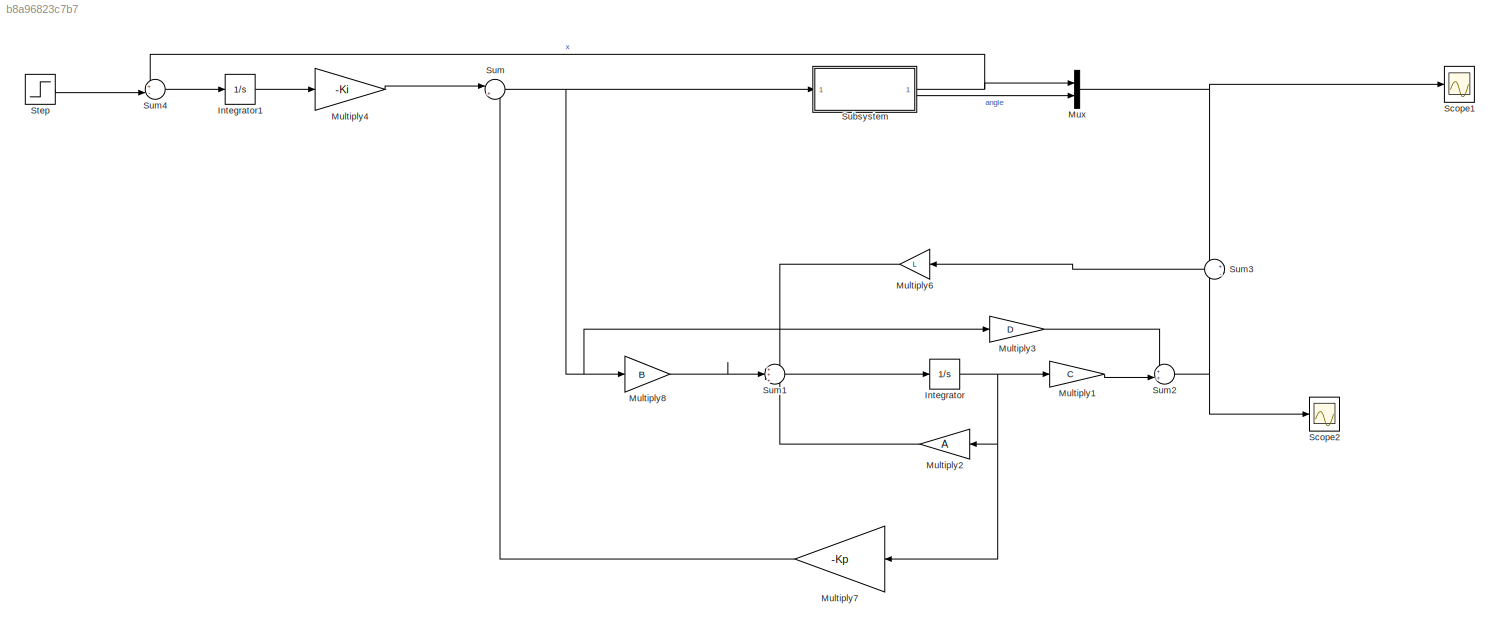
MODEL slx_b8a96823c7b7
KIND model
CONFIG AbsTol = auto
CONFIG EnableMultiTasking = off
CONFIG FixedStep = auto
CONFIG MaxStep = auto
CONFIG MinStep = auto
CONFIG RelTol = 1e-3
CONFIG SampleTimeConstraint = Unconstrained
CONFIG SolverName = VariableStepAuto
CONFIG StartTime = 0.0
CONFIG StopTime = 30
BLOCK [Integrator] Integrator
BLOCK [Integrator] Integrator1
BLOCK [Gain] Multiply1
  Gain = C
  Multiplication = Matrix(K*u)
BLOCK [Gain] Multiply2
  Gain = A
  Multiplication = Matrix(K*u)
  NameLocation = top
BLOCK [Gain] Multiply3
  Gain = D
  Multiplication = Matrix(K*u)
BLOCK [Gain] Multiply4
  Gain = -Ki
  Multiplication = Matrix(K*u)
BLOCK [Gain] Multiply6
  Gain = L
  Multiplication = Matrix(K*u)
  NameLocation = top
BLOCK [Gain] Multiply7
  Gain = -Kp
  Multiplication = Matrix(K*u)
  NameLocation = top
BLOCK [Gain] Multiply8
  Gain = B
  Multiplication = Matrix(K*u)
BLOCK [Mux] Mux
  DisplayOption = bar
  Inputs = 2
BLOCK [Scope] Scope1
  Floating = off
  NumInputPorts = 1
  ScopeSpecificationString = Simulink.scopes.TimeScopeBlockCfg('CurrentConfiguration', extmgr.ConfigurationSet(extmgr.Configuration('Core','General UI',true),extmgr.Configuration('Core','Source UI',true),extmgr.Configuration('Sources','WiredSimulink',true,'DataLoggingVariableName','ScopeData1'),extmgr.Configuration('Visuals','Time Domain',true,'SerializedDisplays',{struct('MinYLimReal','-0.98722','MaxYLimReal','1.54528','YLab...<+1439ch>
BLOCK [Scope] Scope2
  Floating = off
  NumInputPorts = 1
  ScopeSpecificationString = Simulink.scopes.TimeScopeBlockCfg('CurrentConfiguration', extmgr.ConfigurationSet(extmgr.Configuration('Core','General UI',true),extmgr.Configuration('Core','Source UI',true),extmgr.Configuration('Sources','WiredSimulink',true),extmgr.Configuration('Visuals','Time Domain',true,'SerializedDisplays',{struct('MinYLimReal','-1.8225','MaxYLimReal','0.8','YLabelReal','','MinYLimMag','0.00000','MaxYLimMa...<+1398ch>
BLOCK [Step] Step
  SampleTime = 0
  Time = 0
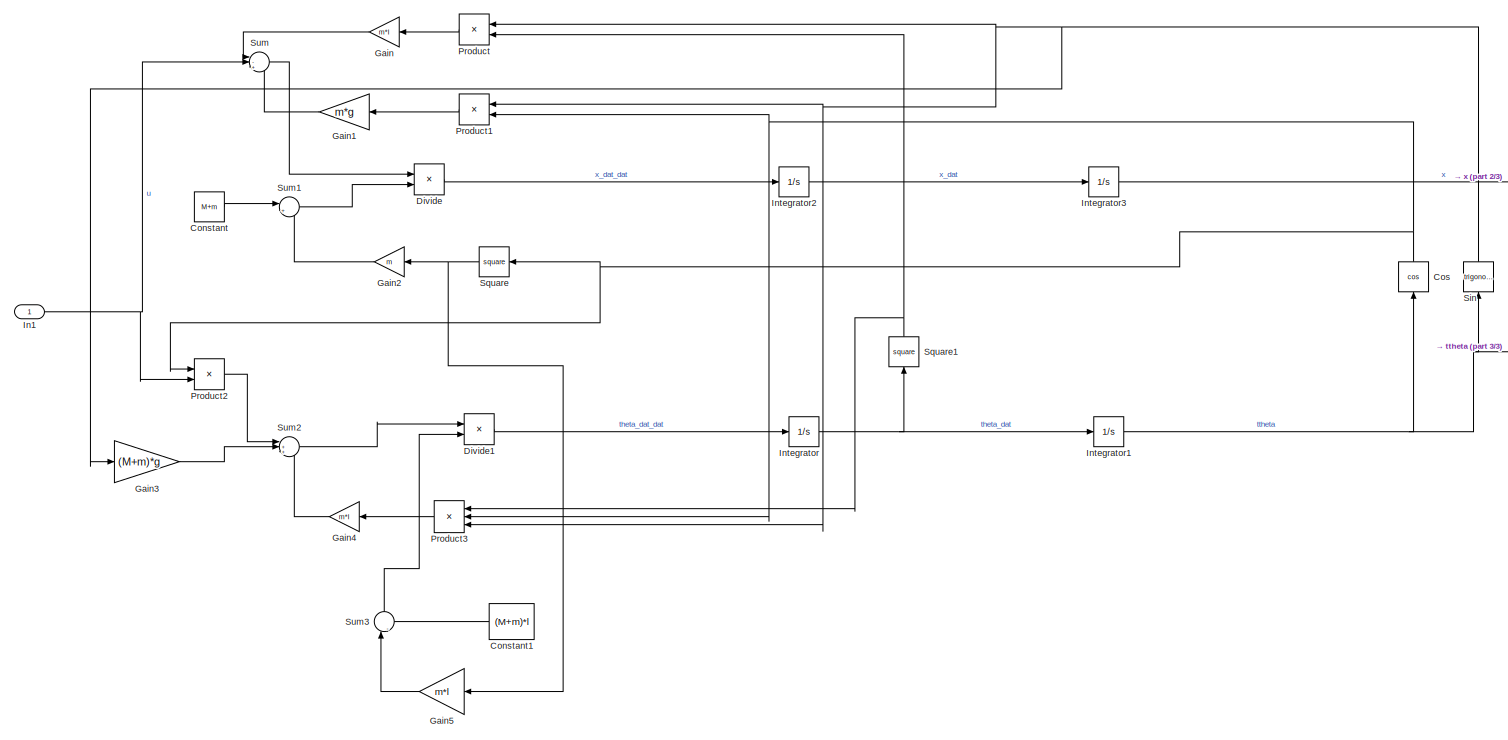
[diagram: Subsystem - part 1/3, most of the canvas]
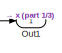
[diagram: Subsystem - part 2/3, top right region]
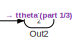
[diagram: Subsystem - part 3/3, middle right region]
BLOCK [SubSystem] Subsystem
BLOCK [Constant] Subsystem/Constant
  Value = M+m
BLOCK [Constant] Subsystem/Constant1
  NameLocation = top
  Value = (M+m)*l
BLOCK [Trigonometry] Subsystem/Cos
  NameLocation = right
  Operator = cos
BLOCK [Product] Subsystem/Divide
  Inputs = */
BLOCK [Product] Subsystem/Divide1
  Inputs = */
BLOCK [Gain] Subsystem/Gain
  Gain = m*l
  NameLocation = top
BLOCK [Gain] Subsystem/Gain1
  Gain = m*g
  NameLocation = top
BLOCK [Gain] Subsystem/Gain2
  Gain = m
  NameLocation = top
BLOCK [Gain] Subsystem/Gain3
  Gain = (M+m)*g
BLOCK [Gain] Subsystem/Gain4
  Gain = m*l
  NameLocation = top
BLOCK [Gain] Subsystem/Gain5
  Gain = m*l
  NameLocation = top
BLOCK [Inport] Subsystem/In1
BLOCK [Integrator] Subsystem/Integrator
BLOCK [Integrator] Subsystem/Integrator1
BLOCK [Integrator] Subsystem/Integrator2
BLOCK [Integrator] Subsystem/Integrator3
BLOCK [Outport] Subsystem/Out1
BLOCK [Outport] Subsystem/Out2
  Port = 2
BLOCK [Product] Subsystem/Product
  NameLocation = top
BLOCK [Product] Subsystem/Product1
  NameLocation = top
BLOCK [Product] Subsystem/Product2
BLOCK [Product] Subsystem/Product3
  Inputs = 3
  NameLocation = top
BLOCK [Trigonometry] Subsystem/Sin
  NameLocation = right
BLOCK [Math] Subsystem/Square
  NameLocation = top
  Operator = square
BLOCK [Math] Subsystem/Square1
  NameLocation = right
  Operator = square
BLOCK [Sum] Subsystem/Sum
  Inputs = |-++
BLOCK [Sum] Subsystem/Sum1
  Inputs = |++
BLOCK [Sum] Subsystem/Sum2
  Inputs = |++-
BLOCK [Sum] Subsystem/Sum3
  Inputs = |-+
  NameLocation = right
BLOCK [Sum] Sum
  Inputs = |++
BLOCK [Sum] Sum1
  Inputs = ++|+
BLOCK [Sum] Sum2
  Inputs = ++|
BLOCK [Sum] Sum3
  Inputs = +|-
  NameLocation = top
BLOCK [Sum] Sum4
  Inputs = +-|
LINE Integrator1:1 -> Multiply4:1
NET Integrator:1 -> Multiply1:1, Multiply2:1, Multiply7:1
LINE Multiply1:1 -> Sum2:2
LINE Multiply2:1 -> Sum1:3
LINE Multiply3:1 -> Sum2:1
LINE Multiply4:1 -> Sum:1
LINE Multiply6:1 -> Sum1:1
LINE Multiply7:1 -> Sum:2
LINE Multiply8:1 -> Sum1:2
NET Mux:1 -> Scope1:1, Sum3:1
LINE Step:1 -> Sum4:2
LINE Subsystem/Constant1:1 -> Subsystem/Sum3:2
LINE Subsystem/Constant:1 -> Subsystem/Sum1:1
NET Subsystem/Cos:1 -> Subsystem/Product1:2, Subsystem/Product2:1, Subsystem/Product3:2, Subsystem/Square:1
LINE Subsystem/Divide1:1 -> Subsystem/Integrator:1
LINE Subsystem/Divide:1 -> Subsystem/Integrator2:1
LINE Subsystem/Gain1:1 -> Subsystem/Sum:3
LINE Subsystem/Gain2:1 -> Subsystem/Sum1:2
LINE Subsystem/Gain3:1 -> Subsystem/Sum2:2
LINE Subsystem/Gain4:1 -> Subsystem/Sum2:3
LINE Subsystem/Gain5:1 -> Subsystem/Sum3:1
LINE Subsystem/Gain:1 -> Subsystem/Sum:1
NET Subsystem/In1:1 -> Subsystem/Product2:2, Subsystem/Sum:2
NET Subsystem/Integrator1:1 -> Subsystem/Cos:1, Subsystem/Out2:1, Subsystem/Sin:1
LINE Subsystem/Integrator2:1 -> Subsystem/Integrator3:1
LINE Subsystem/Integrator3:1 -> Subsystem/Out1:1
NET Subsystem/Integrator:1 -> Subsystem/Integrator1:1, Subsystem/Square1:1
LINE Subsystem/Product1:1 -> Subsystem/Gain1:1
LINE Subsystem/Product2:1 -> Subsystem/Sum2:1
LINE Subsystem/Product3:1 -> Subsystem/Gain4:1
LINE Subsystem/Product:1 -> Subsystem/Gain:1
NET Subsystem/Sin:1 -> Subsystem/Gain3:1, Subsystem/Product1:1, Subsystem/Product3:3, Subsystem/Product:1
NET Subsystem/Square1:1 -> Subsystem/Product3:1, Subsystem/Product:2
NET Subsystem/Square:1 -> Subsystem/Gain2:1, Subsystem/Gain5:1
LINE Subsystem/Sum1:1 -> Subsystem/Divide:2
LINE Subsystem/Sum2:1 -> Subsystem/Divide1:1
LINE Subsystem/Sum3:1 -> Subsystem/Divide1:2
LINE Subsystem/Sum:1 -> Subsystem/Divide:1
NET Subsystem:1 -> Mux:1, Sum4:1
LINE Subsystem:2 -> Mux:2
LINE Sum1:1 -> Integrator:1
NET Sum2:1 -> Scope2:1, Sum3:2
LINE Sum3:1 -> Multiply6:1
LINE Sum4:1 -> Integrator1:1
NET Sum:1 -> Multiply3:1, Multiply8:1, Subsystem:1
note: NET lines group one-source signal fan-out (src -> all destinations, sorted); 1:1 wires keep LINE
